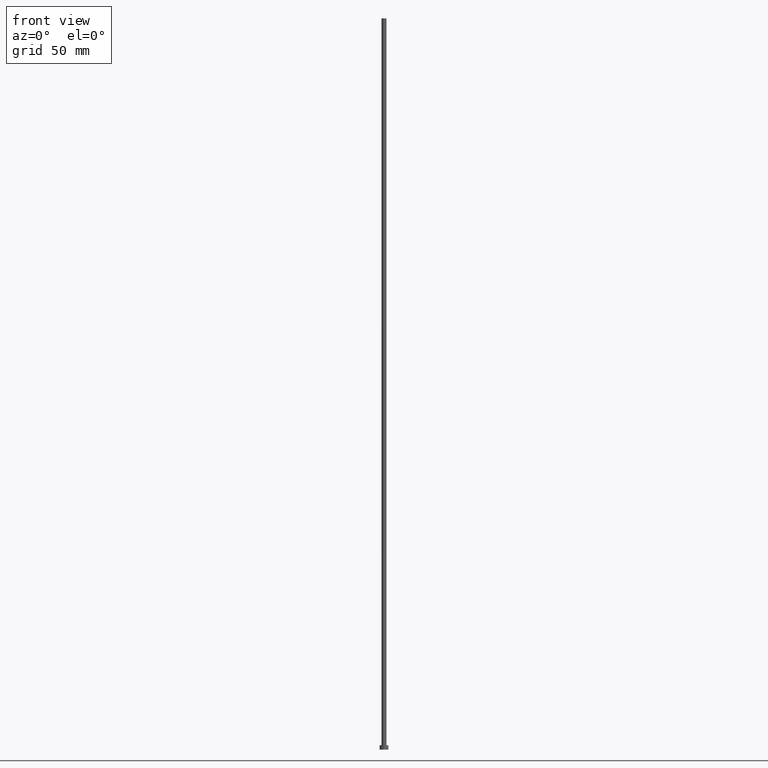
[diagram: clean part render]
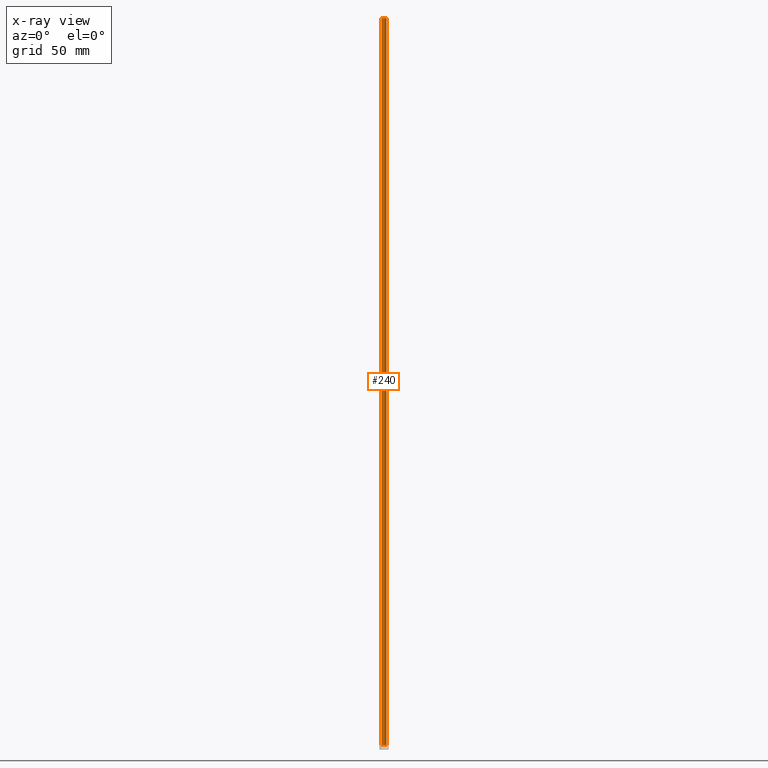
[diagram: x-ray — body ghosted, one internal face saturated and labeled with its STEP entity id]
A machine part, front view, then the same camera in x-ray: the body is ghosted and one INTERNAL B-rep face — a face not visible from any outside direction — is saturated and labeled: STEP entity #240.
In plain terms, the highlighted cylindrical surface (edge-blend (fillet) strip) has radius 1.75 mm, axis along (-0, -0, -1).
Its self-contained STEP definition (entity closure, byte-faithful):
#2 = CARTESIAN_POINT ( 'NONE',  ( 1.750000000000000000, 2.143131898507867804E-16, 500.0000000000000000 ) ) ;
#8 = ORIENTED_EDGE ( 'NONE', *, *, #159, .T. ) ;
#22 = ORIENTED_EDGE ( 'NONE', *, *, #229, .F. ) ;
#24 = DIRECTION ( 'NONE',  ( 0.000000000000000000, 0.000000000000000000, 1.000000000000000000 ) ) ;
#30 = DIRECTION ( 'NONE',  ( 0.000000000000000000, 0.000000000000000000, 1.000000000000000000 ) ) ;
#40 = VERTEX_POINT ( 'NONE', #127 ) ;
#43 = EDGE_CURVE ( 'NONE', #165, #161, #237, .T. ) ;
#44 = DIRECTION ( 'NONE',  ( 1.000000000000000000, 0.000000000000000000, 0.000000000000000000 ) ) ;
#46 = DIRECTION ( 'NONE',  ( -1.000000000000000000, 0.000000000000000000, 0.000000000000000000 ) ) ;
#54 = EDGE_CURVE ( 'NONE', #143, #40, #85, .T. ) ;
#57 = ORIENTED_EDGE ( 'NONE', *, *, #43, .F. ) ;
#62 = CARTESIAN_POINT ( 'NONE',  ( -1.750000000000000000, 0.000000000000000000, 500.0000000000000000 ) ) ;
#64 = CARTESIAN_POINT ( 'NONE',  ( 1.750000000000000000, 2.143131898507867804E-16, 500.0000000000000000 ) ) ;
#68 = DIRECTION ( 'NONE',  ( -0.000000000000000000, -0.000000000000000000, -1.000000000000000000 ) ) ;
#81 = EDGE_LOOP ( 'NONE', ( #22, #223, #8, #57 ) ) ;
#85 = LINE ( 'NONE', #64, #253 ) ;
#90 = VECTOR ( 'NONE', #158, 1000.000000000000000 ) ;
#91 = CYLINDRICAL_SURFACE ( 'NONE', #231, 1.750000000000000000 ) ;
#93 = CARTESIAN_POINT ( 'NONE',  ( 0.000000000000000000, 0.000000000000000000, 500.0000000000000000 ) ) ;
#97 = AXIS2_PLACEMENT_3D ( 'NONE', #93, #30, #44 ) ;
#106 = CARTESIAN_POINT ( 'NONE',  ( -1.750000000000000000, 0.000000000000000000, 3.000000000000000000 ) ) ;
#110 = CARTESIAN_POINT ( 'NONE',  ( 0.000000000000000000, 0.000000000000000000, 3.000000000000000000 ) ) ;
#117 = AXIS2_PLACEMENT_3D ( 'NONE', #110, #24, #126 ) ;
#126 = DIRECTION ( 'NONE',  ( 1.000000000000000000, 0.000000000000000000, 0.000000000000000000 ) ) ;
#127 = CARTESIAN_POINT ( 'NONE',  ( 1.750000000000000000, 2.143131898507867804E-16, 3.000000000000000000 ) ) ;
#143 = VERTEX_POINT ( 'NONE', #2 ) ;
#154 = CIRCLE ( 'NONE', #97, 1.750000000000000000 ) ;
#158 = DIRECTION ( 'NONE',  ( -0.000000000000000000, -0.000000000000000000, -1.000000000000000000 ) ) ;
#159 = EDGE_CURVE ( 'NONE', #40, #161, #250, .T. ) ;
#161 = VERTEX_POINT ( 'NONE', #106 ) ;
#165 = VERTEX_POINT ( 'NONE', #62 ) ;
#172 = CARTESIAN_POINT ( 'NONE',  ( 0.000000000000000000, 0.000000000000000000, 500.0000000000000000 ) ) ;
#209 = CARTESIAN_POINT ( 'NONE',  ( -1.750000000000000000, 0.000000000000000000, 500.0000000000000000 ) ) ;
#223 = ORIENTED_EDGE ( 'NONE', *, *, #54, .T. ) ;
#229 = EDGE_CURVE ( 'NONE', #143, #165, #154, .T. ) ;
#231 = AXIS2_PLACEMENT_3D ( 'NONE', #172, #68, #46 ) ;
#237 = LINE ( 'NONE', #209, #90 ) ;
#240 = ADVANCED_FACE ( 'NONE', ( #252 ), #91, .T. ) ;
#247 = DIRECTION ( 'NONE',  ( -0.000000000000000000, -0.000000000000000000, -1.000000000000000000 ) ) ;
#250 = CIRCLE ( 'NONE', #117, 1.750000000000000000 ) ;
#252 = FACE_OUTER_BOUND ( 'NONE', #81, .T. ) ;
#253 = VECTOR ( 'NONE', #247, 1000.000000000000000 ) ;